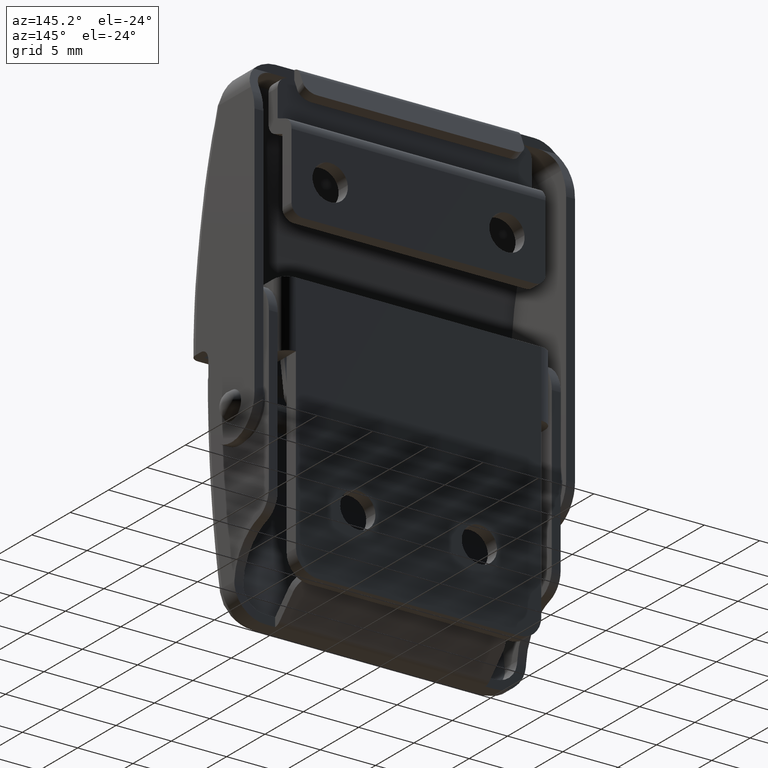
[diagram: clean part render]
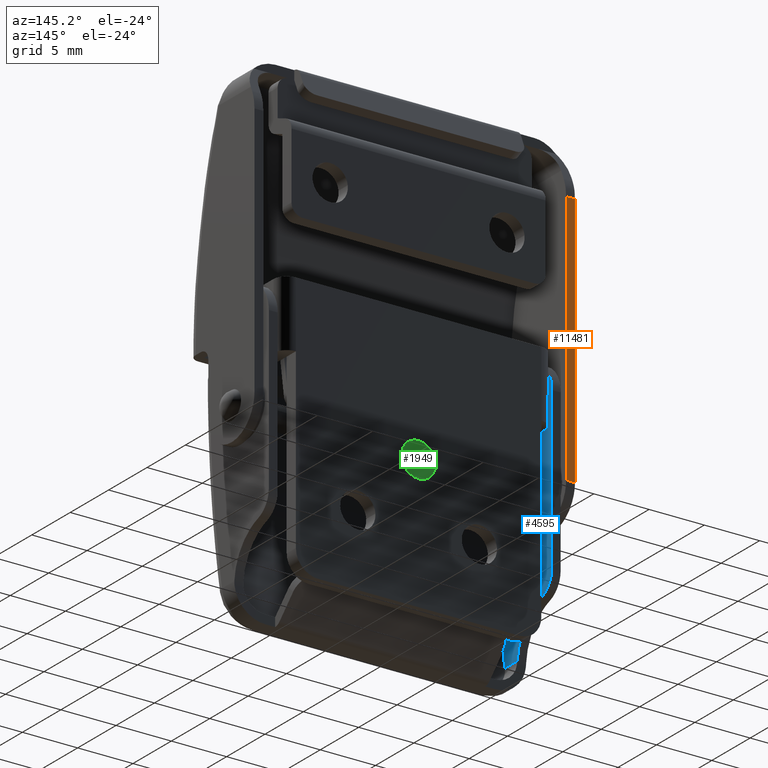
[diagram: same view with three faces highlighted in distinct colors, each labeled with its STEP entity id]
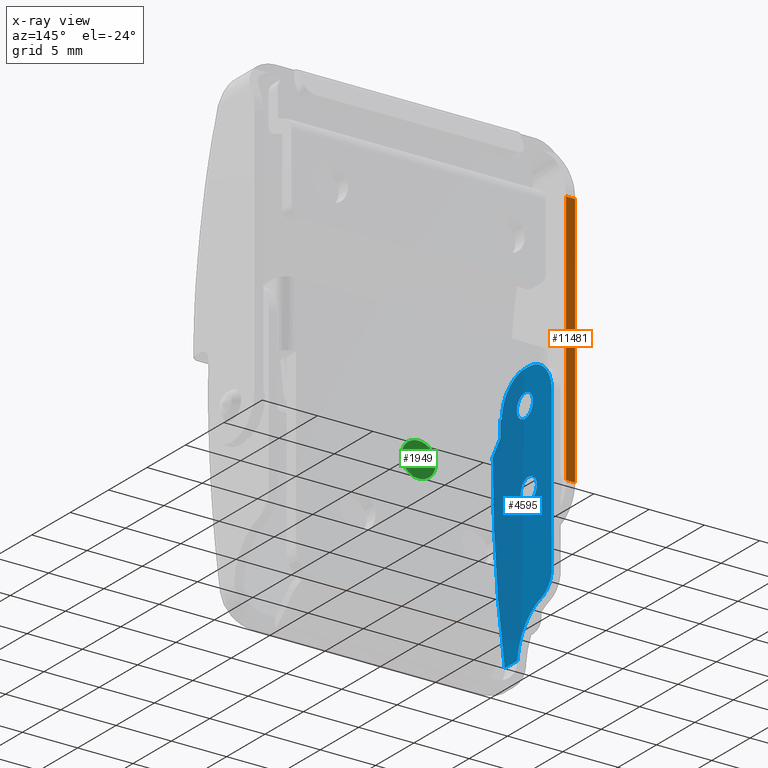
[diagram: x-ray of the same camera — body ghosted, the three highlighted faces saturated]
A machine part, auxiliary view with three faces highlighted in distinct colors.
The next image is the same camera in x-ray (body ghosted, the three faces saturated) — at least one of them is partly hidden behind the body in this view.
Their STEP definitions:

[orange] entity #11481 — the highlighted face is a freeform B-spline surface patch.
#10941=CARTESIAN_POINT('',(-13.699999999999999,-0.500000000000114,7.500000000001960));
#10942=VERTEX_POINT('',#10941);
#10960=CARTESIAN_POINT('',(-13.699999999999999,-0.500000000014779,30.565872899510300));
#10961=VERTEX_POINT('',#10960);
#10962=CARTESIAN_POINT('',(-13.699999999999999,-0.500000000000114,7.500000000001960));
#10963=CARTESIAN_POINT('',(-13.699999999999999,-0.500000000014779,30.565872899510300));
#10964=QUASI_UNIFORM_CURVE('',1,(#10962,#10963),.UNSPECIFIED.,.F.,.U.);
#10965=EDGE_CURVE('',#10942,#10961,#10964,.T.);
#11154=CARTESIAN_POINT('',(-14.500000000000000,-0.500000000014779,30.565872899510300));
#11155=VERTEX_POINT('',#11154);
#11169=CARTESIAN_POINT('',(-14.500000000000000,-0.500000000000114,7.500000000001960));
#11170=VERTEX_POINT('',#11169);
#11171=CARTESIAN_POINT('',(-14.500000000000000,-0.500000000000114,7.500000000001960));
#11172=CARTESIAN_POINT('',(-14.500000000000000,-0.500000000014779,30.565872899510300));
#11173=QUASI_UNIFORM_CURVE('',1,(#11171,#11172),.UNSPECIFIED.,.F.,.U.);
#11174=EDGE_CURVE('',#11170,#11155,#11173,.T.);
#11457=CARTESIAN_POINT('',(-14.500000000000000,-0.500000000014779,30.565872899510300));
#11458=CARTESIAN_POINT('',(-13.699999999999999,-0.500000000014779,30.565872899510300));
#11459=QUASI_UNIFORM_CURVE('',1,(#11457,#11458),.UNSPECIFIED.,.F.,.U.);
#11460=EDGE_CURVE('',#11155,#10961,#11459,.T.);
#11466=CARTESIAN_POINT('',(-14.539960007023931,-0.499999999999024,6.347859775785155));
#11467=CARTESIAN_POINT('',(-14.539960007023931,-0.500000000015528,31.718012092602240));
#11468=CARTESIAN_POINT('',(-13.660039799857021,-0.499999999999024,6.347859775785155));
#11469=CARTESIAN_POINT('',(-13.660039799857021,-0.500000000015528,31.718012092602240));
#11470=B_SPLINE_SURFACE_WITH_KNOTS('',1,1,((#11466,#11468),(#11467,#11469)),.UNSPECIFIED.,.F.,.F.,.U.,(2,2),(2,2),(0.0,25.370152316817080),(0.041708326016739,0.958291875148937),.UNSPECIFIED.);
#11471=ORIENTED_EDGE('',*,*,#11460,.T.);
#11472=ORIENTED_EDGE('',*,*,#10965,.F.);
#11473=CARTESIAN_POINT('',(-14.500000000000000,-0.500000000000114,7.500000000001960));
#11474=CARTESIAN_POINT('',(-13.699999999999999,-0.500000000000114,7.500000000001960));
#11475=QUASI_UNIFORM_CURVE('',1,(#11473,#11474),.UNSPECIFIED.,.F.,.U.);
#11476=EDGE_CURVE('',#11170,#10942,#11475,.T.);
#11477=ORIENTED_EDGE('',*,*,#11476,.F.);
#11478=ORIENTED_EDGE('',*,*,#11174,.T.);
#11479=EDGE_LOOP('',(#11471,#11472,#11477,#11478));
#11480=FACE_OUTER_BOUND('',#11479,.T.);
#11481=ADVANCED_FACE('',(#11480),#11470,.T.);

[blue] entity #4595 — the highlighted face is a freeform B-spline surface patch.
#2215=CARTESIAN_POINT('',(-12.400000000000000,-5.042660002574005,14.376064052826960));
#2216=VERTEX_POINT('',#2215);
#2217=CARTESIAN_POINT('',(-12.400000000000000,-3.999999999981810,15.549999999970799));
#2218=VERTEX_POINT('',#2217);
#2219=CARTESIAN_POINT('',(-12.399999999999999,-5.042660002574005,14.376064052826951));
#2220=CARTESIAN_POINT('',(-12.400000000000002,-5.049999999981810,14.437814673574069));
#2221=CARTESIAN_POINT('',(-12.400000000000000,-5.049999999981810,14.499999999970800));
#2222=CARTESIAN_POINT('',(-12.400000000000000,-5.049999999981810,15.549999999970805));
#2223=CARTESIAN_POINT('',(-12.400000000000000,-3.999999999981810,15.549999999970799));
#2231=(BOUNDED_CURVE()B_SPLINE_CURVE(2,(#2219,#2220,#2221,#2222,#2223),.UNSPECIFIED.,.F.,.U.)B_SPLINE_CURVE_WITH_KNOTS((3,2,3),(0.229562473271133,0.250000000000000,0.500000000000000),.UNSPECIFIED.)CURVE()GEOMETRIC_REPRESENTATION_ITEM()RATIONAL_B_SPLINE_CURVE((0.956026753708635,0.976055948047185,1.0,0.707106781186548,1.0))REPRESENTATION_ITEM(''));
#2232=EDGE_CURVE('',#2216,#2218,#2231,.T.);
#2273=CARTESIAN_POINT('',(-12.400000000000000,-2.951958461665878,14.564100966924309));
#2274=VERTEX_POINT('',#2273);
#2280=CARTESIAN_POINT('',(-12.400000000000000,-3.999999999981810,15.549999999970799));
#2281=CARTESIAN_POINT('',(-12.400000000000000,-3.012258630565351,15.549999999970805));
#2282=CARTESIAN_POINT('',(-12.399999999999999,-2.951958461665879,14.564100966924309));
#2290=(BOUNDED_CURVE()B_SPLINE_CURVE(2,(#2280,#2281,#2282),.UNSPECIFIED.,.F.,.U.)B_SPLINE_CURVE_WITH_KNOTS((3,3),(0.500000000000000,0.739332962096459),.UNSPECIFIED.)CURVE()GEOMETRIC_REPRESENTATION_ITEM()RATIONAL_B_SPLINE_CURVE((1.0,0.719603993453640,0.976072041361348))REPRESENTATION_ITEM(''));
#2291=EDGE_CURVE('',#2218,#2274,#2290,.T.);
#2314=CARTESIAN_POINT('',(-12.400000000000000,-3.999999999981810,13.449999999970800));
#2315=VERTEX_POINT('',#2314);
#2316=CARTESIAN_POINT('',(-12.400000000000000,-3.999999999981810,13.449999999970800));
#2317=CARTESIAN_POINT('',(-12.399999999999999,-4.932583250872002,13.449999999970800));
#2318=CARTESIAN_POINT('',(-12.400000000000004,-5.042660002574006,14.376064052826957));
#2326=(BOUNDED_CURVE()B_SPLINE_CURVE(2,(#2316,#2317,#2318),.UNSPECIFIED.,.F.,.U.)B_SPLINE_CURVE_WITH_KNOTS((3,3),(0.0,0.229562473271133),.UNSPECIFIED.)CURVE()GEOMETRIC_REPRESENTATION_ITEM()RATIONAL_B_SPLINE_CURVE((1.0,0.731050833139362,0.956026753708634))REPRESENTATION_ITEM(''));
#2327=EDGE_CURVE('',#2315,#2216,#2326,.T.);
#2329=CARTESIAN_POINT('',(-12.399999999999997,-2.951958461665879,14.564100966924311));
#2330=CARTESIAN_POINT('',(-12.400000000000006,-2.949999999981809,14.532080401877467));
#2331=CARTESIAN_POINT('',(-12.400000000000000,-2.949999999981810,14.499999999970800));
#2332=CARTESIAN_POINT('',(-12.400000000000000,-2.949999999981810,13.449999999970800));
#2333=CARTESIAN_POINT('',(-12.400000000000000,-3.999999999981810,13.449999999970800));
#2341=(BOUNDED_CURVE()B_SPLINE_CURVE(2,(#2329,#2330,#2331,#2332,#2333),.UNSPECIFIED.,.F.,.U.)B_SPLINE_CURVE_WITH_KNOTS((3,2,3),(0.739332962096459,0.750000000000000,1.0),.UNSPECIFIED.)CURVE()GEOMETRIC_REPRESENTATION_ITEM()RATIONAL_B_SPLINE_CURVE((0.976072041361347,0.987502787732907,1.0,0.707106781186548,1.0))REPRESENTATION_ITEM(''));
#2342=EDGE_CURVE('',#2274,#2315,#2341,.T.);
#2587=CARTESIAN_POINT('',(-12.400000000000000,-4.542660002592196,7.376064052856154));
#2588=VERTEX_POINT('',#2587);
#2589=CARTESIAN_POINT('',(-12.400000000000000,-3.500000000000000,8.550000000000001));
#2590=VERTEX_POINT('',#2589);
#2591=CARTESIAN_POINT('',(-12.400000000000000,-4.542660002592196,7.376064052856154));
#2592=CARTESIAN_POINT('',(-12.400000000000004,-4.550000000000000,7.437814673603270));
#2593=CARTESIAN_POINT('',(-12.400000000000000,-4.550000000000000,7.500000000000000));
#2594=CARTESIAN_POINT('',(-12.400000000000000,-4.550000000000001,8.550000000000001));
#2595=CARTESIAN_POINT('',(-12.400000000000000,-3.500000000000000,8.550000000000001));
#2603=(BOUNDED_CURVE()B_SPLINE_CURVE(2,(#2591,#2592,#2593,#2594,#2595),.UNSPECIFIED.,.F.,.U.)B_SPLINE_CURVE_WITH_KNOTS((3,2,3),(0.229562473271133,0.250000000000000,0.500000000000000),.UNSPECIFIED.)CURVE()GEOMETRIC_REPRESENTATION_ITEM()RATIONAL_B_SPLINE_CURVE((0.956026753708635,0.976055948047185,1.0,0.707106781186548,1.0))REPRESENTATION_ITEM(''));
#2604=EDGE_CURVE('',#2588,#2590,#2603,.T.);
#2645=CARTESIAN_POINT('',(-12.400000000000000,-2.451958461684068,7.564100966953509));
#2646=VERTEX_POINT('',#2645);
#2652=CARTESIAN_POINT('',(-12.400000000000000,-3.500000000000000,8.550000000000001));
#2653=CARTESIAN_POINT('',(-12.400000000000000,-2.512258630583542,8.550000000000001));
#2654=CARTESIAN_POINT('',(-12.399999999999999,-2.451958461684068,7.564100966953509));
#2662=(BOUNDED_CURVE()B_SPLINE_CURVE(2,(#2652,#2653,#2654),.UNSPECIFIED.,.F.,.U.)B_SPLINE_CURVE_WITH_KNOTS((3,3),(0.500000000000000,0.739332962096459),.UNSPECIFIED.)CURVE()GEOMETRIC_REPRESENTATION_ITEM()RATIONAL_B_SPLINE_CURVE((1.0,0.719603993453640,0.976072041361348))REPRESENTATION_ITEM(''));
#2663=EDGE_CURVE('',#2590,#2646,#2662,.T.);
#2686=CARTESIAN_POINT('',(-12.400000000000000,-3.500000000000000,6.450000000000000));
#2687=VERTEX_POINT('',#2686);
#2688=CARTESIAN_POINT('',(-12.400000000000000,-3.500000000000000,6.450000000000000));
#2689=CARTESIAN_POINT('',(-12.399999999999999,-4.432583250890194,6.450000000000001));
#2690=CARTESIAN_POINT('',(-12.400000000000004,-4.542660002592196,7.376064052856154));
#2698=(BOUNDED_CURVE()B_SPLINE_CURVE(2,(#2688,#2689,#2690),.UNSPECIFIED.,.F.,.U.)B_SPLINE_CURVE_WITH_KNOTS((3,3),(0.0,0.229562473271133),.UNSPECIFIED.)CURVE()GEOMETRIC_REPRESENTATION_ITEM()RATIONAL_B_SPLINE_CURVE((1.0,0.731050833139362,0.956026753708634))REPRESENTATION_ITEM(''));
#2699=EDGE_CURVE('',#2687,#2588,#2698,.T.);
#2701=CARTESIAN_POINT('',(-12.400000000000004,-2.451958461684068,7.564100966953509));
#2702=CARTESIAN_POINT('',(-12.400000000000004,-2.450000000000000,7.532080401906667));
#2703=CARTESIAN_POINT('',(-12.400000000000000,-2.450000000000000,7.500000000000000));
#2704=CARTESIAN_POINT('',(-12.400000000000000,-2.449999999999999,6.450000000000001));
#2705=CARTESIAN_POINT('',(-12.400000000000000,-3.500000000000000,6.450000000000000));
#2713=(BOUNDED_CURVE()B_SPLINE_CURVE(2,(#2701,#2702,#2703,#2704,#2705),.UNSPECIFIED.,.F.,.U.)B_SPLINE_CURVE_WITH_KNOTS((3,2,3),(0.739332962096459,0.750000000000000,1.0),.UNSPECIFIED.)CURVE()GEOMETRIC_REPRESENTATION_ITEM()RATIONAL_B_SPLINE_CURVE((0.976072041361347,0.987502787732907,1.0,0.707106781186548,1.0))REPRESENTATION_ITEM(''));
#2714=EDGE_CURVE('',#2646,#2687,#2713,.T.);
#3921=CARTESIAN_POINT('',(-12.400000000000000,-4.989988864122401,-5.900000000000100));
#3922=VERTEX_POINT('',#3921);
#3932=CARTESIAN_POINT('',(-12.400000000000000,-6.621085139310901,-5.900000000000000));
#3933=VERTEX_POINT('',#3932);
#3934=CARTESIAN_POINT('',(-12.400000000000000,-6.621085139310901,-5.900000000000000));
#3935=CARTESIAN_POINT('',(-12.400000000000000,-4.989988864122401,-5.900000000000100));
#3936=QUASI_UNIFORM_CURVE('',1,(#3934,#3935),.UNSPECIFIED.,.F.,.U.);
#3937=EDGE_CURVE('',#3933,#3922,#3936,.T.);
#4467=CARTESIAN_POINT('',(-12.400000000000000,-0.115385042428411,18.668829954615610));
#4468=CARTESIAN_POINT('',(-12.400000000000000,-8.584614613349537,18.668829954615610));
#4469=CARTESIAN_POINT('',(-12.400000000000000,-0.115385042428411,-7.068830582281813));
#4470=CARTESIAN_POINT('',(-12.400000000000000,-8.584614613349537,-7.068830582281813));
#4471=B_SPLINE_SURFACE_WITH_KNOTS('',1,1,((#4467,#4469),(#4468,#4470)),.UNSPECIFIED.,.F.,.F.,.U.,(2,2),(2,2),(0.0,8.469229570921126),(0.0,25.737660536897419),.UNSPECIFIED.);
#4472=CARTESIAN_POINT('',(-12.400000000000000,-8.200000000000001,11.800000000014901));
#4473=VERTEX_POINT('',#4472);
#4474=CARTESIAN_POINT('',(-12.400000000000000,-6.621085139310901,-5.900000000000000));
#4475=CARTESIAN_POINT('',(-12.400000000000002,-8.199999999999999,2.879577058275664));
#4476=CARTESIAN_POINT('',(-12.400000000000000,-8.200000000000001,11.800000000014901));
#4484=(BOUNDED_CURVE()B_SPLINE_CURVE(2,(#4474,#4475,#4476),.UNSPECIFIED.,.F.,.U.)CURVE()GEOMETRIC_REPRESENTATION_ITEM()QUASI_UNIFORM_CURVE()RATIONAL_B_SPLINE_CURVE((1.0,0.996044891406283,1.0))REPRESENTATION_ITEM(''));
#4485=EDGE_CURVE('',#3933,#4473,#4484,.T.);
#4486=ORIENTED_EDGE('',*,*,#4485,.F.);
#4487=ORIENTED_EDGE('',*,*,#3937,.T.);
#4488=CARTESIAN_POINT('',(-12.400000000000000,-1.884615384593510,-1.918313388784650));
#4489=VERTEX_POINT('',#4488);
#4490=CARTESIAN_POINT('',(-12.400000000000000,-4.989988864122404,-5.900000000000100));
#4491=CARTESIAN_POINT('',(-12.400000000000002,-4.786654999762681,-2.856777378048145));
#4492=CARTESIAN_POINT('',(-12.400000000000000,-1.884615384593515,-1.918313388784632));
#4500=(BOUNDED_CURVE()B_SPLINE_CURVE(2,(#4490,#4491,#4492),.UNSPECIFIED.,.F.,.U.)CURVE()GEOMETRIC_REPRESENTATION_ITEM()QUASI_UNIFORM_CURVE()RATIONAL_B_SPLINE_CURVE((1.0,0.827780218363764,1.0))REPRESENTATION_ITEM(''));
#4501=EDGE_CURVE('',#3922,#4489,#4500,.T.);
#4502=ORIENTED_EDGE('',*,*,#4501,.T.);
#4503=CARTESIAN_POINT('',(-12.400000000000000,-0.499999999994770,-0.015341561575696));
#4504=VERTEX_POINT('',#4503);
#4505=CARTESIAN_POINT('',(-12.400000000000000,-0.499999999994770,-0.015341561575696));
#4506=CARTESIAN_POINT('',(-12.400000000000006,-0.499999999978966,-1.470555311793270));
#4507=CARTESIAN_POINT('',(-12.400000000000000,-1.884615384593509,-1.918313388784650));
#4515=(BOUNDED_CURVE()B_SPLINE_CURVE(2,(#4505,#4506,#4507),.UNSPECIFIED.,.F.,.U.)CURVE()GEOMETRIC_REPRESENTATION_ITEM()QUASI_UNIFORM_CURVE()RATIONAL_B_SPLINE_CURVE((1.0,0.808607540062721,1.0))REPRESENTATION_ITEM(''));
#4516=EDGE_CURVE('',#4504,#4489,#4515,.T.);
#4517=ORIENTED_EDGE('',*,*,#4516,.F.);
#4518=CARTESIAN_POINT('',(-12.400000000000000,-0.500000000004263,14.499999999972760));
#4519=VERTEX_POINT('',#4518);
#4520=CARTESIAN_POINT('',(-12.400000000000000,-0.500000000004263,14.499999999972760));
#4521=CARTESIAN_POINT('',(-12.400000000000000,-0.499999999994770,-0.015341561575696));
#4522=QUASI_UNIFORM_CURVE('',1,(#4520,#4521),.UNSPECIFIED.,.F.,.U.);
#4523=EDGE_CURVE('',#4519,#4504,#4522,.T.);
#4524=ORIENTED_EDGE('',*,*,#4523,.F.);
#4525=CARTESIAN_POINT('',(-12.400000000000000,-3.500000000004265,17.499999999970800));
#4526=VERTEX_POINT('',#4525);
#4527=CARTESIAN_POINT('',(-12.400000000000000,-3.500000000004265,17.499999999970800));
#4528=CARTESIAN_POINT('',(-12.400000000000000,-0.500000000006226,17.499999999970804));
#4529=CARTESIAN_POINT('',(-12.400000000000000,-0.500000000004265,14.499999999972760));
#4537=(BOUNDED_CURVE()B_SPLINE_CURVE(2,(#4527,#4528,#4529),.UNSPECIFIED.,.F.,.U.)CURVE()GEOMETRIC_REPRESENTATION_ITEM()QUASI_UNIFORM_CURVE()RATIONAL_B_SPLINE_CURVE((1.0,0.707106781186779,1.0))REPRESENTATION_ITEM(''));
#4538=EDGE_CURVE('',#4526,#4519,#4537,.T.);
#4539=ORIENTED_EDGE('',*,*,#4538,.F.);
#4540=CARTESIAN_POINT('',(-12.400000000000000,-3.999999999981810,17.499999999970800));
#4541=VERTEX_POINT('',#4540);
#4542=CARTESIAN_POINT('',(-12.400000000000000,-3.999999999981810,17.499999999970800));
#4543=CARTESIAN_POINT('',(-12.400000000000000,-3.500000000004265,17.499999999970800));
#4544=QUASI_UNIFORM_CURVE('',1,(#4542,#4543),.UNSPECIFIED.,.F.,.U.);
#4545=EDGE_CURVE('',#4541,#4526,#4544,.T.);
#4546=ORIENTED_EDGE('',*,*,#4545,.F.);
#4547=CARTESIAN_POINT('',(-12.400000000000000,-6.999999999981810,14.499999999970800));
#4548=VERTEX_POINT('',#4547);
#4549=CARTESIAN_POINT('',(-12.400000000000000,-6.999999999981810,14.499999999970800));
#4550=CARTESIAN_POINT('',(-12.400000000000000,-6.999999999981810,17.499999999970807));
#4551=CARTESIAN_POINT('',(-12.400000000000000,-3.999999999981810,17.499999999970800));
#4559=(BOUNDED_CURVE()B_SPLINE_CURVE(2,(#4549,#4550,#4551),.UNSPECIFIED.,.F.,.U.)CURVE()GEOMETRIC_REPRESENTATION_ITEM()QUASI_UNIFORM_CURVE()RATIONAL_B_SPLINE_CURVE((1.0,0.707106781186548,1.0))REPRESENTATION_ITEM(''));
#4560=EDGE_CURVE('',#4548,#4541,#4559,.T.);
#4561=ORIENTED_EDGE('',*,*,#4560,.F.);
#4562=CARTESIAN_POINT('',(-12.400000000000000,-7.199999999981809,14.499999999970800));
#4563=VERTEX_POINT('',#4562);
#4564=CARTESIAN_POINT('',(-12.400000000000000,-7.199999999981809,14.499999999970800));
#4565=CARTESIAN_POINT('',(-12.400000000000000,-6.999999999981810,14.499999999970800));
#4566=QUASI_UNIFORM_CURVE('',1,(#4564,#4565),.UNSPECIFIED.,.F.,.U.);
#4567=EDGE_CURVE('',#4563,#4548,#4566,.T.);
#4568=ORIENTED_EDGE('',*,*,#4567,.F.);
#4569=CARTESIAN_POINT('',(-12.400000000000000,-7.199999999981809,13.012697677192239));
#4570=VERTEX_POINT('',#4569);
#4571=CARTESIAN_POINT('',(-12.400000000000000,-7.199999999981809,13.012697677192239));
#4572=CARTESIAN_POINT('',(-12.400000000000000,-7.199999999981809,14.499999999970800));
#4573=QUASI_UNIFORM_CURVE('',1,(#4571,#4572),.UNSPECIFIED.,.F.,.U.);
#4574=EDGE_CURVE('',#4570,#4563,#4573,.T.);
#4575=ORIENTED_EDGE('',*,*,#4574,.F.);
#4576=CARTESIAN_POINT('',(-12.400000000000000,-8.200000000000001,11.800000000014901));
#4577=CARTESIAN_POINT('',(-12.400000000000000,-7.199999999981809,13.012697677192239));
#4578=QUASI_UNIFORM_CURVE('',1,(#4576,#4577),.UNSPECIFIED.,.F.,.U.);
#4579=EDGE_CURVE('',#4473,#4570,#4578,.T.);
#4580=ORIENTED_EDGE('',*,*,#4579,.F.);
#4581=EDGE_LOOP('',(#4486,#4487,#4502,#4517,#4524,#4539,#4546,#4561,#4568,#4575,#4580));
#4582=FACE_OUTER_BOUND('',#4581,.T.);
#4583=ORIENTED_EDGE('',*,*,#2663,.T.);
#4584=ORIENTED_EDGE('',*,*,#2714,.T.);
#4585=ORIENTED_EDGE('',*,*,#2699,.T.);
#4586=ORIENTED_EDGE('',*,*,#2604,.T.);
#4587=EDGE_LOOP('',(#4583,#4584,#4585,#4586));
#4588=FACE_BOUND('',#4587,.T.);
#4589=ORIENTED_EDGE('',*,*,#2291,.T.);
#4590=ORIENTED_EDGE('',*,*,#2342,.T.);
#4591=ORIENTED_EDGE('',*,*,#2327,.T.);
#4592=ORIENTED_EDGE('',*,*,#2232,.T.);
#4593=EDGE_LOOP('',(#4589,#4590,#4591,#4592));
#4594=FACE_BOUND('',#4593,.T.);
#4595=ADVANCED_FACE('',(#4582,#4588,#4594),#4471,.T.);

[green] entity #1949 — the highlighted face is a freeform B-spline surface patch.
#1621=CARTESIAN_POINT('',(-1.545221867330733,1.097480E-010,5.621611599184050));
#1622=VERTEX_POINT('',#1621);
#1628=CARTESIAN_POINT('',(-2.842171E-014,4.440892E-016,3.949999999970709));
#1629=VERTEX_POINT('',#1628);
#1630=CARTESIAN_POINT('',(-1.545221867330733,1.097480E-010,5.621611599184050));
#1631=CARTESIAN_POINT('',(-1.550000000000029,4.440892E-016,5.560899666663003));
#1632=CARTESIAN_POINT('',(-1.550000000000028,4.440892E-016,5.499999999970710));
#1633=CARTESIAN_POINT('',(-1.550000000000029,4.440892E-016,3.949999999970710));
#1634=CARTESIAN_POINT('',(-2.842171E-014,4.440892E-016,3.949999999970709));
#1642=(BOUNDED_CURVE()B_SPLINE_CURVE(2,(#1630,#1631,#1632,#1633,#1634),.UNSPECIFIED.,.F.,.U.)B_SPLINE_CURVE_WITH_KNOTS((3,2,3),(0.736331300449370,0.750000000000000,1.0),.UNSPECIFIED.)CURVE()GEOMETRIC_REPRESENTATION_ITEM()RATIONAL_B_SPLINE_CURVE((0.969723355789081,0.983986122366488,1.0,0.707106781186547,1.0))REPRESENTATION_ITEM(''));
#1643=EDGE_CURVE('',#1622,#1629,#1642,.T.);
#1645=CARTESIAN_POINT('',(0.833668730474867,3.781350E-011,6.806712075351356));
#1646=VERTEX_POINT('',#1645);
#1647=CARTESIAN_POINT('',(-2.842171E-014,4.440892E-016,3.949999999970709));
#1648=CARTESIAN_POINT('',(1.549999999999971,4.440892E-016,3.949999999970710));
#1649=CARTESIAN_POINT('',(1.549999999999972,4.440892E-016,5.499999999970710));
#1650=CARTESIAN_POINT('',(1.549999999999971,4.440892E-016,6.349700165847959));
#1651=CARTESIAN_POINT('',(0.833668730474867,3.781350E-011,6.806712075351356));
#1659=(BOUNDED_CURVE()B_SPLINE_CURVE(2,(#1647,#1648,#1649,#1650,#1651),.UNSPECIFIED.,.F.,.U.)B_SPLINE_CURVE_WITH_KNOTS((3,2,3),(0.0,0.250000000000000,0.407950112484327),.UNSPECIFIED.)CURVE()GEOMETRIC_REPRESENTATION_ITEM()RATIONAL_B_SPLINE_CURVE((1.0,0.707106781186547,1.0,0.814949932570074,0.863729296866461))REPRESENTATION_ITEM(''));
#1660=EDGE_CURVE('',#1629,#1646,#1659,.T.);
#1704=CARTESIAN_POINT('',(-2.842171E-014,4.440892E-016,7.049999999970710));
#1705=VERTEX_POINT('',#1704);
#1706=CARTESIAN_POINT('',(0.833668730474867,3.781350E-011,6.806712075351356));
#1707=CARTESIAN_POINT('',(0.452333486626813,4.440892E-016,7.049999999970710));
#1708=CARTESIAN_POINT('',(-2.842171E-014,4.440892E-016,7.049999999970710));
#1716=(BOUNDED_CURVE()B_SPLINE_CURVE(2,(#1706,#1707,#1708),.UNSPECIFIED.,.F.,.U.)B_SPLINE_CURVE_WITH_KNOTS((3,3),(0.407950112484327,0.500000000000000),.UNSPECIFIED.)CURVE()GEOMETRIC_REPRESENTATION_ITEM()RATIONAL_B_SPLINE_CURVE((0.863729296866461,0.892156848616473,1.0))REPRESENTATION_ITEM(''));
#1717=EDGE_CURVE('',#1646,#1705,#1716,.T.);
#1719=CARTESIAN_POINT('',(-2.842171E-014,4.440892E-016,7.049999999970710));
#1720=CARTESIAN_POINT('',(-1.432805260532641,4.440892E-016,7.049999999970710));
#1721=CARTESIAN_POINT('',(-1.545221867330733,1.097480E-010,5.621611599184050));
#1729=(BOUNDED_CURVE()B_SPLINE_CURVE(2,(#1719,#1720,#1721),.UNSPECIFIED.,.F.,.U.)B_SPLINE_CURVE_WITH_KNOTS((3,3),(0.500000000000000,0.736331300449371),.UNSPECIFIED.)CURVE()GEOMETRIC_REPRESENTATION_ITEM()RATIONAL_B_SPLINE_CURVE((1.0,0.723120658820059,0.969723355789081))REPRESENTATION_ITEM(''));
#1730=EDGE_CURVE('',#1705,#1622,#1729,.T.);
#1938=CARTESIAN_POINT('',(-1.704366063227752,2.220446E-016,3.795155024004315));
#1939=CARTESIAN_POINT('',(-1.704366063227752,2.220446E-016,7.204845308531022));
#1940=CARTESIAN_POINT('',(1.704249960234207,2.220446E-016,3.795155024004315));
#1941=CARTESIAN_POINT('',(1.704249960234207,2.220446E-016,7.204845308531021));
#1942=B_SPLINE_SURFACE_WITH_KNOTS('',1,1,((#1938,#1940),(#1939,#1941)),.UNSPECIFIED.,.F.,.F.,.U.,(2,2),(2,2),(0.0,3.409690284526707),(0.0,3.408616023461960),.UNSPECIFIED.);
#1943=ORIENTED_EDGE('',*,*,#1643,.F.);
#1944=ORIENTED_EDGE('',*,*,#1730,.F.);
#1945=ORIENTED_EDGE('',*,*,#1717,.F.);
#1946=ORIENTED_EDGE('',*,*,#1660,.F.);
#1947=EDGE_LOOP('',(#1943,#1944,#1945,#1946));
#1948=FACE_OUTER_BOUND('',#1947,.T.);
#1949=ADVANCED_FACE('',(#1948),#1942,.T.);